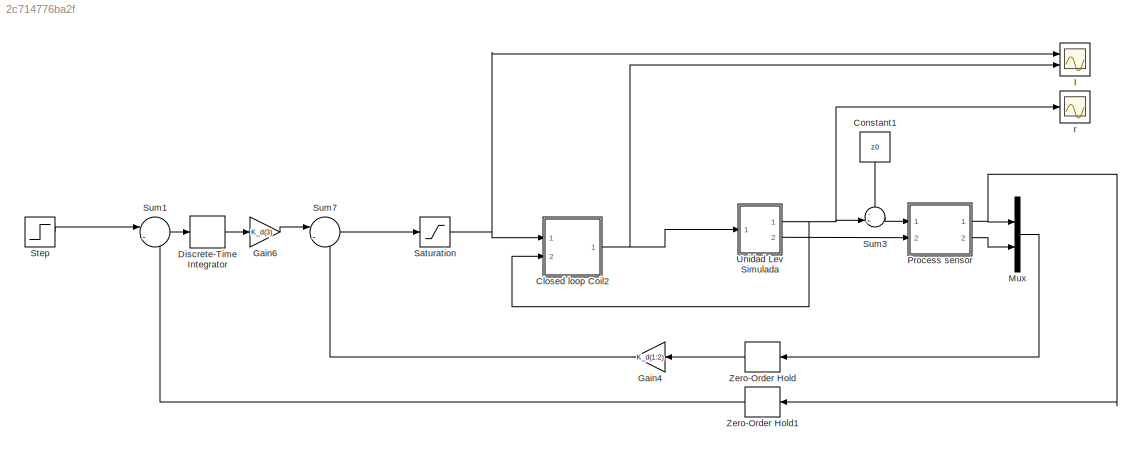
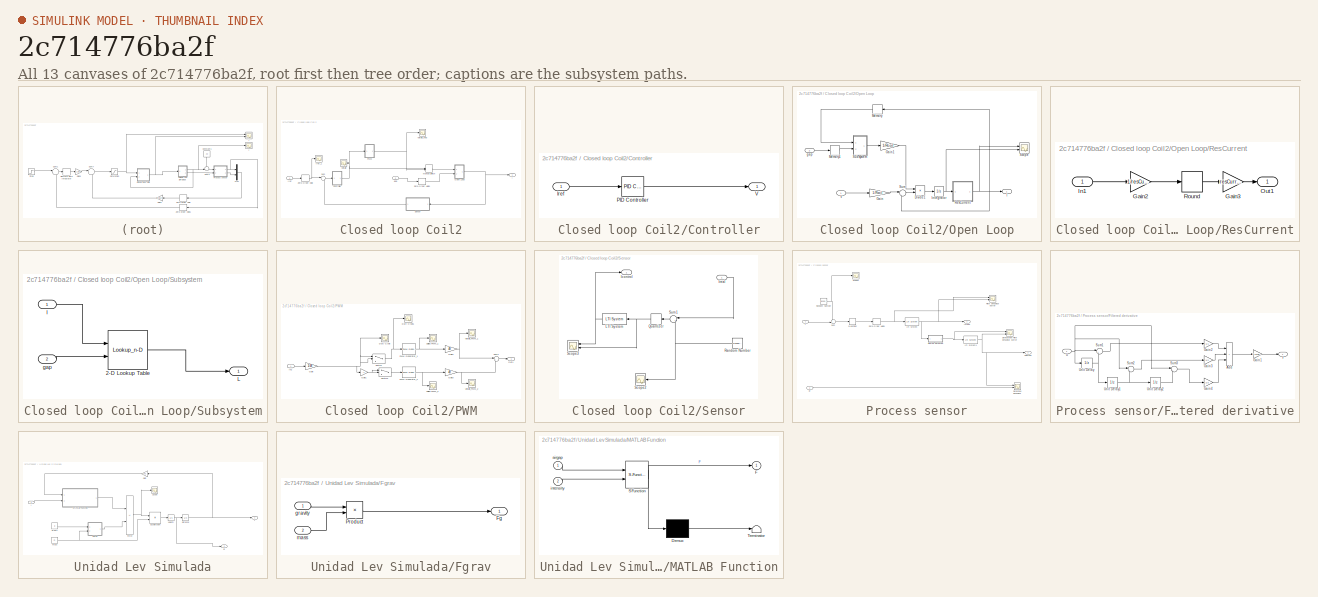
[diagram: thumbnail index - all 13 canvases of the model, root first then tree order]
MODEL slx_2c714776ba2f
KIND model
CONFIG AbsTol = auto
CONFIG EnableMultiTasking = off
CONFIG FixedStep = auto
CONFIG MaxStep = auto
CONFIG MinStep = auto
CONFIG RelTol = 1e-3
CONFIG SampleTimeConstraint = Unconstrained
CONFIG SolverName = ode45
CONFIG StartTime = 0.0
CONFIG StopTime = 7
BLOCK [SubSystem] Closed loop Coil2
  Ports = [2, 1]
  RequestExecContextInheritance = off
BLOCK [SubSystem] Closed loop Coil2/Controller
  Ports = [1, 1]
  RequestExecContextInheritance = off
BLOCK [Inport] Closed loop Coil2/Controller/Iref
BLOCK [Reference] Closed loop Coil2/Controller/PID Controller  REF=slpidlib/PID Controller
  Ports = [1, 1]
  SourceBlock = slpidlib/PID Controller
  SourceProductBaseCode = SL
  SourceType = PID 1dof
BLOCK [Outport] Closed loop Coil2/Controller/V
BLOCK [Outport] Closed loop Coil2/I
BLOCK [Inport] Closed loop Coil2/Iref
BLOCK [Scope] Closed loop Coil2/Iref_1
  Floating = off
  NumInputPorts = 1
  Ports = [1]
  ScopeSpecificationString = Simulink.scopes.TimeScopeBlockCfg('CurrentConfiguration', extmgr.ConfigurationSet(extmgr.Configuration('Core','General UI',true),extmgr.Configuration('Core','Source UI',true),extmgr.Configuration('Sources','WiredSimulink',true,'DataLoggingVariableName','ScopeData1'),extmgr.Configuration('Visuals','Time Domain',true,'SerializedDisplays',{struct('MinYLimReal','-0.60908','MaxYLimReal','5.20233','YLab...<+1445ch>
BLOCK [ManualSwitch] Closed loop Coil2/Manual Switch
BLOCK [SubSystem] Closed loop Coil2/Open Loop
  Ports = [2, 1]
  RequestExecContextInheritance = off
BLOCK [Product] Closed loop Coil2/Open Loop/Divide1
  Inputs = /*
  Ports = [2, 1]
BLOCK [Gain] Closed loop Coil2/Open Loop/Gain
  Gain = 1/Rcoil
BLOCK [Gain] Closed loop Coil2/Open Loop/Gain1
  Gain = 1/Rcoil
BLOCK [Outport] Closed loop Coil2/Open Loop/I
BLOCK [Integrator] Closed loop Coil2/Open Loop/Integrator
  Ports = [1, 1]
BLOCK [Memory] Closed loop Coil2/Open Loop/Memory
BLOCK [Memory] Closed loop Coil2/Open Loop/Memory1
  NameLocation = top
BLOCK [SubSystem] Closed loop Coil2/Open Loop/ResCurrent
  Commented = through
  Ports = [1, 1]
  RequestExecContextInheritance = off
BLOCK [Gain] Closed loop Coil2/Open Loop/ResCurrent/Gain2
  Gain = 1/resCurrent
BLOCK [Gain] Closed loop Coil2/Open Loop/ResCurrent/Gain3
  Gain = resCurrent
BLOCK [Inport] Closed loop Coil2/Open Loop/ResCurrent/In1
BLOCK [Outport] Closed loop Coil2/Open Loop/ResCurrent/Out1
BLOCK [Rounding] Closed loop Coil2/Open Loop/ResCurrent/Round
  Operator = round
BLOCK [Scope] Closed loop Coil2/Open Loop/Scope
  Floating = off
  NumInputPorts = 2
  Ports = [2]
  ScopeSpecificationString = Simulink.scopes.TimeScopeBlockCfg('CurrentConfiguration', extmgr.ConfigurationSet(extmgr.Configuration('Core','General UI',true),extmgr.Configuration('Core','Source UI',true),extmgr.Configuration('Sources','WiredSimulink',true,'DataLoggingVariableName','ScopeData1'),extmgr.Configuration('Visuals','Time Domain',true,'SerializedDisplays',{struct('MinYLimReal','3.18971','MaxYLimReal','3.73275','YLabe...<+1801ch>
BLOCK [SubSystem] Closed loop Coil2/Open Loop/Subsystem
  Ports = [2, 1]
  RequestExecContextInheritance = off
BLOCK [Lookup_n-D] Closed loop Coil2/Open Loop/Subsystem/2-D Lookup Table
  BreakpointsForDimension1 = current_I
  BreakpointsForDimension2 = airgap
  InputPortMap = u0,u1
  InternalRulePriority = Speed
  Ports = [2, 1]
  RndMeth = Simplest
  Table = inductance
BLOCK [Inport] Closed loop Coil2/Open Loop/Subsystem/I
BLOCK [Outport] Closed loop Coil2/Open Loop/Subsystem/L
BLOCK [Inport] Closed loop Coil2/Open Loop/Subsystem/gap
  Port = 2
BLOCK [Sum] Closed loop Coil2/Open Loop/Sum
  Inputs = |+-
  Ports = [2, 1]
BLOCK [Inport] Closed loop Coil2/Open Loop/V
BLOCK [Inport] Closed loop Coil2/Open Loop/gap
  Port = 2
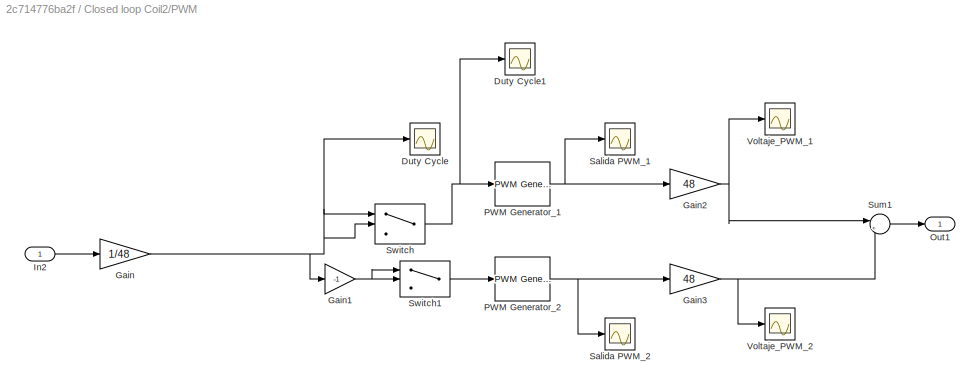
BLOCK [SubSystem] Closed loop Coil2/PWM
  Ports = [1, 1]
  RequestExecContextInheritance = off
BLOCK [Scope] Closed loop Coil2/PWM/Duty Cycle
  Floating = off
  NumInputPorts = 1
  Ports = [1]
  ScopeSpecificationString = Simulink.scopes.TimeScopeBlockCfg('CurrentConfiguration', extmgr.ConfigurationSet(extmgr.Configuration('Core','General UI',true),extmgr.Configuration('Core','Source UI',true),extmgr.Configuration('Sources','WiredSimulink',true,'DataLoggingVariableName','ScopeData2'),extmgr.Configuration('Visuals','Time Domain',true,'SerializedDisplays',{struct('MinYLimReal','-0.25031','MaxYLimReal','0.23599','YLab...<+1463ch>
BLOCK [Scope] Closed loop Coil2/PWM/Duty Cycle1
  Floating = off
  NumInputPorts = 1
  Ports = [1]
  ScopeSpecificationString = Simulink.scopes.TimeScopeBlockCfg('CurrentConfiguration', extmgr.ConfigurationSet(extmgr.Configuration('Core','General UI',true),extmgr.Configuration('Core','Source UI',true),extmgr.Configuration('Sources','WiredSimulink',true,'DataLoggingVariableName','ScopeData1'),extmgr.Configuration('Visuals','Time Domain',true,'SerializedDisplays',{struct('MinYLimReal','-0.25031','MaxYLimReal','0.23599','YLab...<+1465ch>
BLOCK [Gain] Closed loop Coil2/PWM/Gain
  Gain = 1/48
BLOCK [Gain] Closed loop Coil2/PWM/Gain1
  Gain = -1
BLOCK [Gain] Closed loop Coil2/PWM/Gain2
  Gain = 48
BLOCK [Gain] Closed loop Coil2/PWM/Gain3
  Gain = 48
BLOCK [Inport] Closed loop Coil2/PWM/In2
BLOCK [Outport] Closed loop Coil2/PWM/Out1
BLOCK [Reference] Closed loop Coil2/PWM/PWM Generator_1  REF=spsPWMGeneratorDCDCLib/PWM Generator
(DC-DC)
  Ports = [1, 1]
  SourceBlock = spsPWMGeneratorDCDCLib/PWM Generator\n(DC-DC)
  SourceProductBaseCode = PS
  SourceType = PWM Generator (DC-DC)
BLOCK [Reference] Closed loop Coil2/PWM/PWM Generator_2  REF=spsPWMGeneratorDCDCLib/PWM Generator
(DC-DC)
  Ports = [1, 1]
  SourceBlock = spsPWMGeneratorDCDCLib/PWM Generator\n(DC-DC)
  SourceProductBaseCode = PS
  SourceType = PWM Generator (DC-DC)
BLOCK [Scope] Closed loop Coil2/PWM/Salida PWM_1
  Floating = off
  NumInputPorts = 1
  Ports = [1]
  ScopeSpecificationString = Simulink.scopes.TimeScopeBlockCfg('CurrentConfiguration', extmgr.ConfigurationSet(extmgr.Configuration('Core','General UI',true),extmgr.Configuration('Core','Source UI',true),extmgr.Configuration('Sources','WiredSimulink',true,'DataLoggingVariableName','ScopeData3'),extmgr.Configuration('Visuals','Time Domain',true,'SerializedDisplays',{struct('MinYLimReal','-0.125','MaxYLimReal','1.125','YLabelRe...<+1433ch>
BLOCK [Scope] Closed loop Coil2/PWM/Salida PWM_2
  Floating = off
  NumInputPorts = 1
  Ports = [1]
  ScopeSpecificationString = Simulink.scopes.TimeScopeBlockCfg('CurrentConfiguration', extmgr.ConfigurationSet(extmgr.Configuration('Core','General UI',true),extmgr.Configuration('Core','Source UI',true),extmgr.Configuration('Sources','WiredSimulink',true,'DataLoggingVariableName','ScopeData1'),extmgr.Configuration('Visuals','Time Domain',true,'SerializedDisplays',{struct('MinYLimReal','-0.125','MaxYLimReal','1.125','YLabelRe...<+1431ch>
BLOCK [Sum] Closed loop Coil2/PWM/Sum1
  Inputs = |+-
  Ports = [2, 1]
BLOCK [Switch] Closed loop Coil2/PWM/Switch
  Criteria = u2 > Threshold
  InputSameDT = off
  SaturateOnIntegerOverflow = off
BLOCK [Switch] Closed loop Coil2/PWM/Switch1
  Criteria = u2 > Threshold
  InputSameDT = off
  SaturateOnIntegerOverflow = off
BLOCK [Scope] Closed loop Coil2/PWM/Voltaje_PWM_1
  Floating = off
  NumInputPorts = 1
  Ports = [1]
  ScopeSpecificationString = Simulink.scopes.TimeScopeBlockCfg('CurrentConfiguration', extmgr.ConfigurationSet(extmgr.Configuration('Core','General UI',true),extmgr.Configuration('Core','Source UI',true),extmgr.Configuration('Sources','WiredSimulink',true,'DataLoggingVariableName','ScopeData2'),extmgr.Configuration('Visuals','Time Domain',true,'SerializedDisplays',{struct('MinYLimReal','-0.89623','MaxYLimReal','48.27045','YLa...<+1439ch>
BLOCK [Scope] Closed loop Coil2/PWM/Voltaje_PWM_2
  Floating = off
  NumInputPorts = 1
  Ports = [1]
  ScopeSpecificationString = Simulink.scopes.TimeScopeBlockCfg('CurrentConfiguration', extmgr.ConfigurationSet(extmgr.Configuration('Core','General UI',true),extmgr.Configuration('Core','Source UI',true),extmgr.Configuration('Sources','WiredSimulink',true,'DataLoggingVariableName','ScopeData3'),extmgr.Configuration('Visuals','Time Domain',true,'SerializedDisplays',{struct('MinYLimReal','-6.00000','MaxYLimReal','54.00000','YLa...<+1439ch>
BLOCK [SubSystem] Closed loop Coil2/Sensor
  Ports = [1, 1]
  RequestExecContextInheritance = off
BLOCK [Outport] Closed loop Coil2/Sensor/Icontrol
BLOCK [Inport] Closed loop Coil2/Sensor/Ireal
BLOCK [Reference] Closed loop Coil2/Sensor/LTI System  REF=cstblocks/LTI System
  NameLocation = top
  Ports = [1, 1]
  SourceBlock = cstblocks/LTI System
  SourceProductBaseCode = CT
  SourceType = LTI Block
BLOCK [Quantizer] Closed loop Coil2/Sensor/Quantizer
  NameLocation = top
  QuantizationInterval = resCurrentSensor
BLOCK [RandomNumber] Closed loop Coil2/Sensor/Random Number
  Variance = VarianceCurrentNoise
BLOCK [Scope] Closed loop Coil2/Sensor/Scope2
  Floating = off
  NumInputPorts = 1
  Ports = [1]
  ScopeSpecificationString = Simulink.scopes.TimeScopeBlockCfg('CurrentConfiguration', extmgr.ConfigurationSet(extmgr.Configuration('Core','General UI',true),extmgr.Configuration('Core','Source UI',true),extmgr.Configuration('Sources','WiredSimulink',true,'DataLoggingVariableName','ScopeData1'),extmgr.Configuration('Visuals','Time Domain',true,'SerializedDisplays',{struct('MinYLimReal','-0.36838','MaxYLimReal','0.31996','YLab...<+1950ch>
BLOCK [Scope] Closed loop Coil2/Sensor/Scope3
  Floating = off
  NumInputPorts = 2
  Ports = [2]
  ScopeSpecificationString = Simulink.scopes.TimeScopeBlockCfg('CurrentConfiguration', extmgr.ConfigurationSet(extmgr.Configuration('Core','General UI',true),extmgr.Configuration('Core','Source UI',true),extmgr.Configuration('Sources','WiredSimulink',true,'DataLoggingVariableName','figuragrafica','DataLoggingSaveFormat','StructureWithTime'),extmgr.Configuration('Visuals','Time Domain',true,'SerializedDisplays',{struct('MinYLi...<+1571ch>
BLOCK [Sum] Closed loop Coil2/Sensor/Sum1
  Inputs = |++
  Ports = [2, 1]
BLOCK [Sum] Closed loop Coil2/Sum
  Inputs = |+-
  Ports = [2, 1]
BLOCK [Scope] Closed loop Coil2/Voltaje
  Floating = off
  NameLocation = top
  NumInputPorts = 1
  Ports = [1]
  ScopeSpecificationString = Simulink.scopes.TimeScopeBlockCfg('CurrentConfiguration', extmgr.ConfigurationSet(extmgr.Configuration('Core','General UI',true),extmgr.Configuration('Core','Source UI',true),extmgr.Configuration('Sources','WiredSimulink',true,'DataLoggingVariableName','ScopeData1'),extmgr.Configuration('Visuals','Time Domain',true,'SerializedDisplays',{struct('MinYLimReal','-13.48365','MaxYLimReal','11.49073','YL...<+1446ch>
BLOCK [Scope] Closed loop Coil2/Voltaje_final
  Floating = off
  NumInputPorts = 1
  Ports = [1]
  ScopeSpecificationString = Simulink.scopes.TimeScopeBlockCfg('CurrentConfiguration', extmgr.ConfigurationSet(extmgr.Configuration('Core','General UI',true),extmgr.Configuration('Core','Source UI',true),extmgr.Configuration('Sources','WiredSimulink',true,'DataLoggingVariableName','ScopeData4'),extmgr.Configuration('Visuals','Time Domain',true,'SerializedDisplays',{struct('MinYLimReal','-60.00000','MaxYLimReal','60.00000','YL...<+1440ch>
BLOCK [ZeroOrderHold] Closed loop Coil2/Zero-Order Hold
  NameLocation = top
  SampleTime = dtCurrent
BLOCK [ZeroOrderHold] Closed loop Coil2/Zero-Order Hold1
  NameLocation = top
  SampleTime = dtCurrent
BLOCK [Inport] Closed loop Coil2/gap
  Port = 2
BLOCK [Constant] Constant1
  NameLocation = left
  SampleTime = T
  Value = z0
BLOCK [DiscreteIntegrator] Discrete-Time Integrator
  ICPrevOutput = DiscIntNeverNeededParam
  ICPrevScaledInput = DiscIntNeverNeededParam
  InitialConditionSetting = Auto
  Ports = [1, 1]
  SampleTime = T
BLOCK [Gain] Gain4
  Gain = K_d(1:2)
  Multiplication = Matrix(K*u)
  NameLocation = top
BLOCK [Gain] Gain6
  Gain = K_d(3)
BLOCK [Scope] I
  Floating = off
  NumInputPorts = 2
  Ports = [2]
  ScopeSpecificationString = Simulink.scopes.TimeScopeBlockCfg('CurrentConfiguration', extmgr.ConfigurationSet(extmgr.Configuration('Core','General UI',true),extmgr.Configuration('Core','Source UI',true),extmgr.Configuration('Sources','WiredSimulink',true,'DataLoggingVariableName','figuragrafica','DataLoggingSaveFormat','StructureWithTime','DataLoggingDecimation','1','DataLoggingDecimateData',true),extmgr.Configuration('Visua...<+1813ch>
BLOCK [Mux] Mux
  DisplayOption = bar
  Inputs = 2
  Ports = [2, 1]
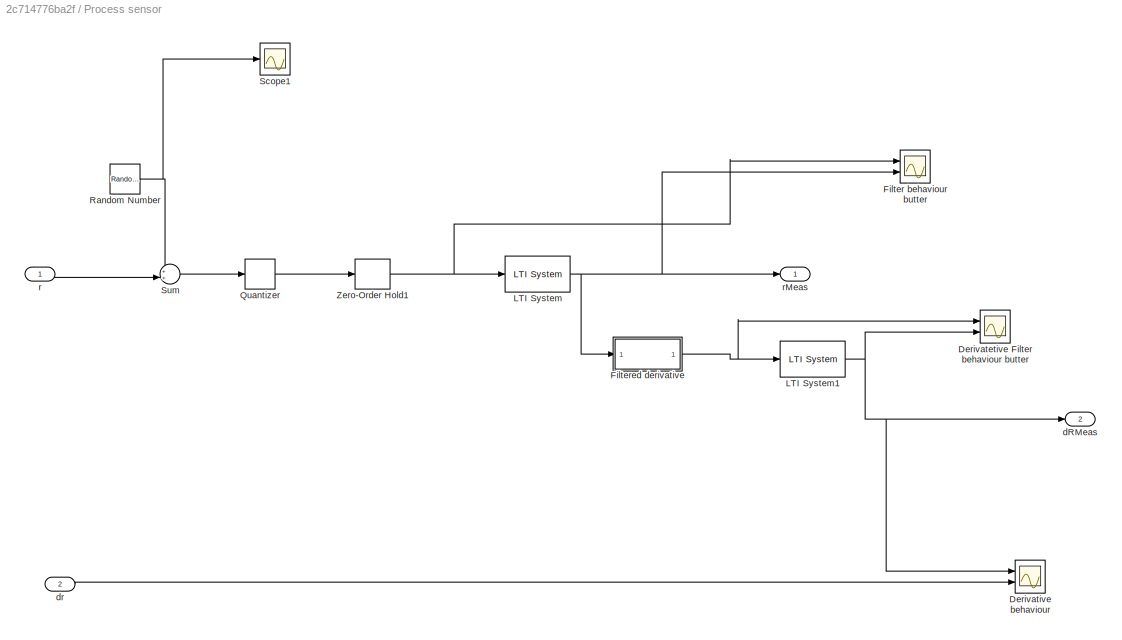
BLOCK [SubSystem] Process sensor
  Ports = [2, 2]
  RequestExecContextInheritance = off
BLOCK [Scope] Process sensor/Derivatetive Filter behaviour butter
  Floating = off
  NumInputPorts = 2
  Ports = [2]
  ScopeSpecificationString = Simulink.scopes.TimeScopeBlockCfg('CurrentConfiguration', extmgr.ConfigurationSet(extmgr.Configuration('Core','General UI',true),extmgr.Configuration('Core','Source UI',true),extmgr.Configuration('Sources','WiredSimulink',true,'DataLoggingVariableName','ScopeData3'),extmgr.Configuration('Visuals','Time Domain',true,'SerializedDisplays',{struct('MinYLimReal','-0.13129','MaxYLimReal','0.09986','YLab...<+1472ch>
BLOCK [Scope] Process sensor/Derivative behaviour
  Floating = off
  NumInputPorts = 2
  Ports = [2]
  ScopeSpecificationString = Simulink.scopes.TimeScopeBlockCfg('CurrentConfiguration', extmgr.ConfigurationSet(extmgr.Configuration('Core','General UI',true),extmgr.Configuration('Core','Source UI',true),extmgr.Configuration('Sources','WiredSimulink',true,'DataLoggingVariableName','figuragrafica','DataLoggingSaveFormat','StructureWithTime'),extmgr.Configuration('Visuals','Time Domain',true,'SerializedDisplays',{struct('MinYLi...<+1562ch>
BLOCK [Scope] Process sensor/Filter behaviour butter
  Floating = off
  NumInputPorts = 2
  Ports = [2]
  ScopeSpecificationString = Simulink.scopes.TimeScopeBlockCfg('CurrentConfiguration', extmgr.ConfigurationSet(extmgr.Configuration('Core','General UI',true),extmgr.Configuration('Core','Source UI',true),extmgr.Configuration('Sources','WiredSimulink',true,'DataLoggingVariableName','ScopeData1'),extmgr.Configuration('Visuals','Time Domain',true,'SerializedDisplays',{struct('MinYLimReal','-0.00042','MaxYLimReal','0.00145','YLab...<+1468ch>
BLOCK [SubSystem] Process sensor/Filtered derivative
  Ports = [1, 1]
  RequestExecContextInheritance = off
BLOCK [Sum] Process sensor/Filtered derivative/Add
  IconShape = rectangular
  Inputs = +++
  Ports = [3, 1]
BLOCK [Gain] Process sensor/Filtered derivative/Gain1
  Gain = 1/(dTSensor*3)
BLOCK [Gain] Process sensor/Filtered derivative/Gain2
  Gain = 1/1
BLOCK [Gain] Process sensor/Filtered derivative/Gain3
  Gain = 1/2
BLOCK [Gain] Process sensor/Filtered derivative/Gain4
  Gain = 1/3
BLOCK [Sum] Process sensor/Filtered derivative/Sum1
  Inputs = |+-
  Ports = [2, 1]
BLOCK [Sum] Process sensor/Filtered derivative/Sum2
  Inputs = |+-
  Ports = [2, 1]
BLOCK [Sum] Process sensor/Filtered derivative/Sum3
  Inputs = |+-
  Ports = [2, 1]
BLOCK [Inport] Process sensor/Filtered derivative/U
BLOCK [UnitDelay] Process sensor/Filtered derivative/Unit Delay
  HasFrameUpgradeWarning = on
  SampleTime = -1
BLOCK [UnitDelay] Process sensor/Filtered derivative/Unit Delay1
  HasFrameUpgradeWarning = on
  SampleTime = -1
BLOCK [UnitDelay] Process sensor/Filtered derivative/Unit Delay2
  HasFrameUpgradeWarning = on
  SampleTime = -1
BLOCK [Outport] Process sensor/Filtered derivative/Y
BLOCK [Reference] Process sensor/LTI System  REF=cstblocks/LTI System
  Ports = [1, 1]
  SourceBlock = cstblocks/LTI System
  SourceProductBaseCode = CT
  SourceType = LTI Block
BLOCK [Reference] Process sensor/LTI System1  REF=cstblocks/LTI System
  Ports = [1, 1]
  SourceBlock = cstblocks/LTI System
  SourceProductBaseCode = CT
  SourceType = LTI Block
BLOCK [Quantizer] Process sensor/Quantizer
  QuantizationInterval = resSensor
BLOCK [RandomNumber] Process sensor/Random Number
  Variance = noiseSensor^2
BLOCK [Scope] Process sensor/Scope1
  Floating = off
  NumInputPorts = 1
  Ports = [1]
  ScopeSpecificationString = Simulink.scopes.TimeScopeBlockCfg('CurrentConfiguration', extmgr.ConfigurationSet(extmgr.Configuration('Core','General UI',true),extmgr.Configuration('Core','Source UI',true),extmgr.Configuration('Sources','WiredSimulink',true,'DataLoggingVariableName','ScopeData3'),extmgr.Configuration('Visuals','Time Domain',true,'SerializedDisplays',{struct('MinYLimReal','-0.00009','MaxYLimReal','0.00008','YLab...<+1479ch>
BLOCK [Sum] Process sensor/Sum
  Inputs = ++|
  Ports = [2, 1]
BLOCK [ZeroOrderHold] Process sensor/Zero-Order Hold1
  SampleTime = dTSensor
BLOCK [Outport] Process sensor/dRMeas
  Port = 2
BLOCK [Inport] Process sensor/dr
  Port = 2
BLOCK [Inport] Process sensor/r
BLOCK [Outport] Process sensor/rMeas
BLOCK [Saturate] Saturation
  LowerLimit = Imin
  UpperLimit = Imax
BLOCK [Step] Step
  After = -1e-3
  SampleTime = T
BLOCK [Sum] Sum1
  Inputs = |-+
  Ports = [2, 1]
BLOCK [Sum] Sum3
  Inputs = -+|
  Ports = [2, 1]
BLOCK [Sum] Sum7
  Inputs = |--
  Ports = [2, 1]
BLOCK [SubSystem] Unidad Lev Simulada
  Ports = [1, 2]
  RequestExecContextInheritance = off
BLOCK [SubSystem] Unidad Lev Simulada/Fgrav
  Ports = [2, 1]
  RequestExecContextInheritance = off
BLOCK [Outport] Unidad Lev Simulada/Fgrav/Fg
  VectorParamsAs1DForOutWhenUnconnected = off
BLOCK [Product] Unidad Lev Simulada/Fgrav/Product
  Ports = [2, 1]
BLOCK [Inport] Unidad Lev Simulada/Fgrav/gravity
BLOCK [Inport] Unidad Lev Simulada/Fgrav/mass
  Port = 2
BLOCK [Sum] Unidad Lev Simulada/Force
  IconShape = rectangular
  Inputs = -+
  Ports = [2, 1]
BLOCK [Gain] Unidad Lev Simulada/Gain
  Gain = 1e3
  NameLocation = top
BLOCK [Inport] Unidad Lev Simulada/I
BLOCK [SubSystem] Unidad Lev Simulada/MATLAB Function
  ErrorFcn = Stateflow.Translate.translate
  PermitHierarchicalResolution = ExplicitOnly
  Ports = [2, 1]
  RequestExecContextInheritance = off
  SFBlockType = MATLAB Function
  TreatAsAtomicUnit = on
BLOCK [Demux] Unidad Lev Simulada/MATLAB Function/ Demux 
  Outputs = 1
  Ports = [1, 1]
BLOCK [S-Function] Unidad Lev Simulada/MATLAB Function/ SFunction 
  EnableBusSupport = on
  FunctionName = sf_sfun
  PortCounts = [2 2]
  Ports = [2, 2]
  SFcnIsStateOwnerBlock = off
  SFunctionDeploymentMode = off
  Tag = Stateflow S-Function 2
BLOCK [Terminator] Unidad Lev Simulada/MATLAB Function/ Terminator 
BLOCK [Outport] Unidad Lev Simulada/MATLAB Function/F
BLOCK [Inport] Unidad Lev Simulada/MATLAB Function/airgap
BLOCK [Inport] Unidad Lev Simulada/MATLAB Function/intensity
  Port = 2
BLOCK [Constant] Unidad Lev Simulada/Mass
  Value = m
BLOCK [Scope] Unidad Lev Simulada/Scope
  Floating = off
  NumInputPorts = 1
  Ports = [1]
  ScopeSpecificationString = Simulink.scopes.TimeScopeBlockCfg('CurrentConfiguration', extmgr.ConfigurationSet(extmgr.Configuration('Core','General UI',true),extmgr.Configuration('Core','Source UI',true),extmgr.Configuration('Sources','WiredSimulink',true,'DataLoggingVariableName','ScopeData1'),extmgr.Configuration('Visuals','Time Domain',true,'SerializedDisplays',{struct('MinYLimReal','-8.62381','MaxYLimReal','10.4886','YLab...<+1416ch>
BLOCK [Product] Unidad Lev Simulada/acceleration
  Inputs = */
  Ports = [2, 1]
BLOCK [Integrator] Unidad Lev Simulada/distance
  InitialCondition = z0
  Ports = [1, 1]
BLOCK [Outport] Unidad Lev Simulada/dr
  Port = 2
  VectorParamsAs1DForOutWhenUnconnected = off
BLOCK [Constant] Unidad Lev Simulada/gravity
  Value = g
BLOCK [Outport] Unidad Lev Simulada/r
  VectorParamsAs1DForOutWhenUnconnected = off
BLOCK [Integrator] Unidad Lev Simulada/velocity
  Ports = [1, 1]
BLOCK [ZeroOrderHold] Zero-Order Hold
  SampleTime = T
BLOCK [ZeroOrderHold] Zero-Order Hold1
  SampleTime = T
BLOCK [Scope] r
  Floating = off
  NumInputPorts = 1
  Ports = [1]
  ScopeSpecificationString = Simulink.scopes.TimeScopeBlockCfg('CurrentConfiguration', extmgr.ConfigurationSet(extmgr.Configuration('Core','General UI',true),extmgr.Configuration('Core','Source UI',true),extmgr.Configuration('Sources','WiredSimulink',true,'DataLoggingVariableName','R','DataLoggingSaveFormat','StructureWithTime','DataLoggingDecimation','1','DataLoggingDecimateData',true,'DataLogging',true),extmgr.Configuration...<+1724ch>
LINE Closed loop Coil2/Controller/Iref:1 -> Closed loop Coil2/Controller/PID Controller:1
LINE Closed loop Coil2/Controller/PID Controller:1 -> Closed loop Coil2/Controller/V:1
NET Closed loop Coil2/Controller:1 -> Closed loop Coil2/Manual Switch:1, Closed loop Coil2/PWM:1, Closed loop Coil2/Voltaje:1
LINE Closed loop Coil2/Iref:1 -> Closed loop Coil2/Zero-Order Hold:1
LINE Closed loop Coil2/Manual Switch:1 -> Closed loop Coil2/Open Loop:1
LINE Closed loop Coil2/Open Loop/Divide1:1 -> Closed loop Coil2/Open Loop/Integrator:1
LINE Closed loop Coil2/Open Loop/Gain1:1 -> Closed loop Coil2/Open Loop/Divide1:1
LINE Closed loop Coil2/Open Loop/Gain:1 -> Closed loop Coil2/Open Loop/Sum:1
NET Closed loop Coil2/Open Loop/Integrator:1 -> Closed loop Coil2/Open Loop/ResCurrent:1, Closed loop Coil2/Open Loop/Scope:2
LINE Closed loop Coil2/Open Loop/Memory1:1 -> Closed loop Coil2/Open Loop/Subsystem:2
LINE Closed loop Coil2/Open Loop/Memory:1 -> Closed loop Coil2/Open Loop/Subsystem:1
LINE Closed loop Coil2/Open Loop/ResCurrent/Gain2:1 -> Closed loop Coil2/Open Loop/ResCurrent/Round:1
LINE Closed loop Coil2/Open Loop/ResCurrent/Gain3:1 -> Closed loop Coil2/Open Loop/ResCurrent/Out1:1
LINE Closed loop Coil2/Open Loop/ResCurrent/In1:1 -> Closed loop Coil2/Open Loop/ResCurrent/Gain2:1
LINE Closed loop Coil2/Open Loop/ResCurrent/Round:1 -> Closed loop Coil2/Open Loop/ResCurrent/Gain3:1
NET Closed loop Coil2/Open Loop/ResCurrent:1 -> Closed loop Coil2/Open Loop/I:1, Closed loop Coil2/Open Loop/Memory:1, Closed loop Coil2/Open Loop/Scope:1, Closed loop Coil2/Open Loop/Sum:2
LINE Closed loop Coil2/Open Loop/Subsystem/2-D Lookup Table:1 -> Closed loop Coil2/Open Loop/Subsystem/L:1
LINE Closed loop Coil2/Open Loop/Subsystem/I:1 -> Closed loop Coil2/Open Loop/Subsystem/2-D Lookup Table:1
LINE Closed loop Coil2/Open Loop/Subsystem/gap:1 -> Closed loop Coil2/Open Loop/Subsystem/2-D Lookup Table:2
LINE Closed loop Coil2/Open Loop/Subsystem:1 -> Closed loop Coil2/Open Loop/Gain1:1
LINE Closed loop Coil2/Open Loop/Sum:1 -> Closed loop Coil2/Open Loop/Divide1:2
LINE Closed loop Coil2/Open Loop/V:1 -> Closed loop Coil2/Open Loop/Gain:1
LINE Closed loop Coil2/Open Loop/gap:1 -> Closed loop Coil2/Open Loop/Memory1:1
NET Closed loop Coil2/Open Loop:1 -> Closed loop Coil2/I:1, Closed loop Coil2/Sensor:1
NET Closed loop Coil2/PWM/Gain1:1 -> Closed loop Coil2/PWM/Switch1:1, Closed loop Coil2/PWM/Switch1:2
NET Closed loop Coil2/PWM/Gain2:1 -> Closed loop Coil2/PWM/Sum1:1, Closed loop Coil2/PWM/Voltaje_PWM_1:1
NET Closed loop Coil2/PWM/Gain3:1 -> Closed loop Coil2/PWM/Sum1:2, Closed loop Coil2/PWM/Voltaje_PWM_2:1
NET Closed loop Coil2/PWM/Gain:1 -> Closed loop Coil2/PWM/Duty Cycle:1, Closed loop Coil2/PWM/Gain1:1, Closed loop Coil2/PWM/Switch:1, Closed loop Coil2/PWM/Switch:2
LINE Closed loop Coil2/PWM/In2:1 -> Closed loop Coil2/PWM/Gain:1
NET Closed loop Coil2/PWM/PWM Generator_1:1 -> Closed loop Coil2/PWM/Gain2:1, Closed loop Coil2/PWM/Salida PWM_1:1
NET Closed loop Coil2/PWM/PWM Generator_2:1 -> Closed loop Coil2/PWM/Gain3:1, Closed loop Coil2/PWM/Salida PWM_2:1
LINE Closed loop Coil2/PWM/Sum1:1 -> Closed loop Coil2/PWM/Out1:1
LINE Closed loop Coil2/PWM/Switch1:1 -> Closed loop Coil2/PWM/PWM Generator_2:1
NET Closed loop Coil2/PWM/Switch:1 -> Closed loop Coil2/PWM/Duty Cycle1:1, Closed loop Coil2/PWM/PWM Generator_1:1
NET Closed loop Coil2/PWM:1 -> Closed loop Coil2/Manual Switch:2, Closed loop Coil2/Voltaje_final:1
LINE Closed loop Coil2/Sensor/Ireal:1 -> Closed loop Coil2/Sensor/Sum1:1
NET Closed loop Coil2/Sensor/LTI System:1 -> Closed loop Coil2/Sensor/Icontrol:1, Closed loop Coil2/Sensor/Scope3:1
NET Closed loop Coil2/Sensor/Quantizer:1 -> Closed loop Coil2/Sensor/LTI System:1, Closed loop Coil2/Sensor/Scope3:2
NET Closed loop Coil2/Sensor/Random Number:1 -> Closed loop Coil2/Sensor/Scope2:1, Closed loop Coil2/Sensor/Sum1:2
LINE Closed loop Coil2/Sensor/Sum1:1 -> Closed loop Coil2/Sensor/Quantizer:1
LINE Closed loop Coil2/Sensor:1 -> Closed loop Coil2/Sum:2
LINE Closed loop Coil2/Sum:1 -> Closed loop Coil2/Controller:1
LINE Closed loop Coil2/Zero-Order Hold1:1 -> Closed loop Coil2/Open Loop:2
NET Closed loop Coil2/Zero-Order Hold:1 -> Closed loop Coil2/Iref_1:1, Closed loop Coil2/Sum:1
LINE Closed loop Coil2/gap:1 -> Closed loop Coil2/Zero-Order Hold1:1
NET Closed loop Coil2:1 -> I:2, Unidad Lev Simulada:1
LINE Constant1:1 -> Sum3:1
LINE Discrete-Time Integrator:1 -> Gain6:1
LINE Gain4:1 -> Sum7:2
LINE Gain6:1 -> Sum7:1
LINE Mux:1 -> Zero-Order Hold:1
LINE Process sensor/Filtered derivative/Add:1 -> Process sensor/Filtered derivative/Gain1:1
LINE Process sensor/Filtered derivative/Gain1:1 -> Process sensor/Filtered derivative/Y:1
LINE Process sensor/Filtered derivative/Gain2:1 -> Process sensor/Filtered derivative/Add:1
LINE Process sensor/Filtered derivative/Gain3:1 -> Process sensor/Filtered derivative/Add:2
LINE Process sensor/Filtered derivative/Gain4:1 -> Process sensor/Filtered derivative/Add:3
LINE Process sensor/Filtered derivative/Sum1:1 -> Process sensor/Filtered derivative/Gain2:1
LINE Process sensor/Filtered derivative/Sum2:1 -> Process sensor/Filtered derivative/Gain3:1
LINE Process sensor/Filtered derivative/Sum3:1 -> Process sensor/Filtered derivative/Gain4:1
NET Process sensor/Filtered derivative/U:1 -> Process sensor/Filtered derivative/Sum1:1, Process sensor/Filtered derivative/Sum2:1, Process sensor/Filtered derivative/Sum3:1, Process sensor/Filtered derivative/Unit Delay:1
NET Process sensor/Filtered derivative/Unit Delay1:1 -> Process sensor/Filtered derivative/Sum2:2, Process sensor/Filtered derivative/Unit Delay2:1
LINE Process sensor/Filtered derivative/Unit Delay2:1 -> Process sensor/Filtered derivative/Sum3:2
NET Process sensor/Filtered derivative/Unit Delay:1 -> Process sensor/Filtered derivative/Sum1:2, Process sensor/Filtered derivative/Unit Delay1:1
NET Process sensor/Filtered derivative:1 -> Process sensor/Derivatetive Filter behaviour butter:1, Process sensor/LTI System1:1
NET Process sensor/LTI System1:1 -> Process sensor/Derivatetive Filter behaviour butter:2, Process sensor/Derivative behaviour:1, Process sensor/dRMeas:1
NET Process sensor/LTI System:1 -> Process sensor/Filter behaviour butter:2, Process sensor/Filtered derivative:1, Process sensor/rMeas:1
LINE Process sensor/Quantizer:1 -> Process sensor/Zero-Order Hold1:1
NET Process sensor/Random Number:1 -> Process sensor/Scope1:1, Process sensor/Sum:1
LINE Process sensor/Sum:1 -> Process sensor/Quantizer:1
NET Process sensor/Zero-Order Hold1:1 -> Process sensor/Filter behaviour butter:1, Process sensor/LTI System:1
LINE Process sensor/dr:1 -> Process sensor/Derivative behaviour:2
LINE Process sensor/r:1 -> Process sensor/Sum:2
NET Process sensor:1 -> Mux:1, Zero-Order Hold1:1
LINE Process sensor:2 -> Mux:2
NET Saturation:1 -> Closed loop Coil2:1, I:1
LINE Step:1 -> Sum1:1
LINE Sum1:1 -> Discrete-Time Integrator:1
LINE Sum3:1 -> Process sensor:1
LINE Sum7:1 -> Saturation:1
LINE Unidad Lev Simulada/Fgrav/Product:1 -> Unidad Lev Simulada/Fgrav/Fg:1
LINE Unidad Lev Simulada/Fgrav/gravity:1 -> Unidad Lev Simulada/Fgrav/Product:1
LINE Unidad Lev Simulada/Fgrav/mass:1 -> Unidad Lev Simulada/Fgrav/Product:2
LINE Unidad Lev Simulada/Fgrav:1 -> Unidad Lev Simulada/Force:2
NET Unidad Lev Simulada/Force:1 -> Unidad Lev Simulada/Scope:1, Unidad Lev Simulada/acceleration:1
LINE Unidad Lev Simulada/Gain:1 -> Unidad Lev Simulada/MATLAB Function:1
LINE Unidad Lev Simulada/I:1 -> Unidad Lev Simulada/MATLAB Function:2
LINE Unidad Lev Simulada/MATLAB Function:1 -> Unidad Lev Simulada/Force:1
NET Unidad Lev Simulada/Mass:1 -> Unidad Lev Simulada/Fgrav:2, Unidad Lev Simulada/acceleration:2
LINE Unidad Lev Simulada/acceleration:1 -> Unidad Lev Simulada/velocity:1
NET Unidad Lev Simulada/distance:1 -> Unidad Lev Simulada/Gain:1, Unidad Lev Simulada/r:1
LINE Unidad Lev Simulada/gravity:1 -> Unidad Lev Simulada/Fgrav:1
NET Unidad Lev Simulada/velocity:1 -> Unidad Lev Simulada/distance:1, Unidad Lev Simulada/dr:1
NET Unidad Lev Simulada:1 -> Closed loop Coil2:2, Sum3:2, r:1
LINE Unidad Lev Simulada:2 -> Process sensor:2
LINE Zero-Order Hold1:1 -> Sum1:2
LINE Zero-Order Hold:1 -> Gain4:1
note: NET lines group one-source signal fan-out (src -> all destinations, sorted); 1:1 wires keep LINE
CHART Unidad Lev Simulada/MATLAB Function states=1 transitions=1
  STATE_LABEL 'eML_blk_kernel()'
  STATE_LABEL 'SCRIPT:\nfunction F = HEMSlev1DOF(airgap, intensity)\n% Computes the levitation force (N) of all the HEMS units as a function of \n% their air gaps (mm) and intensities (A)\n% ═════════════════════════════════════════════════════════════════════════\n% Last updated: 01.15.2021\n% ════════════════════════════════════════════════════════════════════════\n\nx   = airgap;\ny   = intensity;\n\np00 =       926.8;\n...<+306ch>'
CHART  states=0 transitions=0
